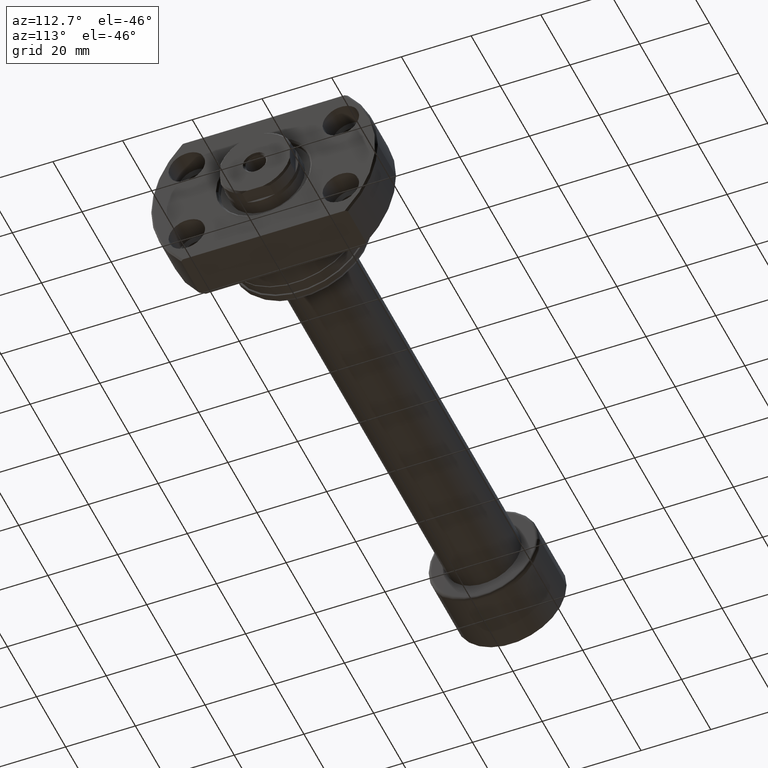
[diagram: clean part render]
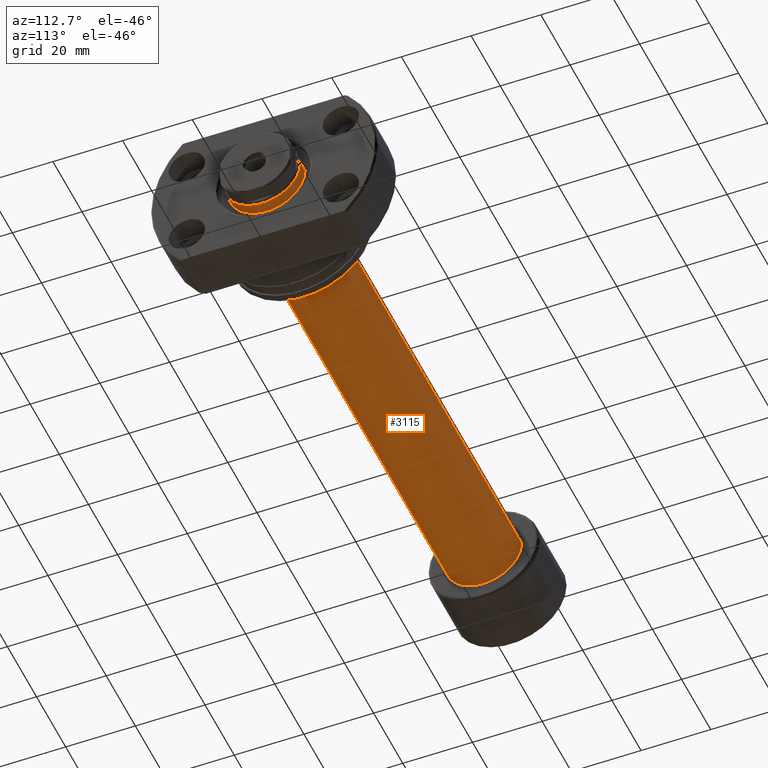
[diagram: same view with one face highlighted and labeled with its STEP entity id]
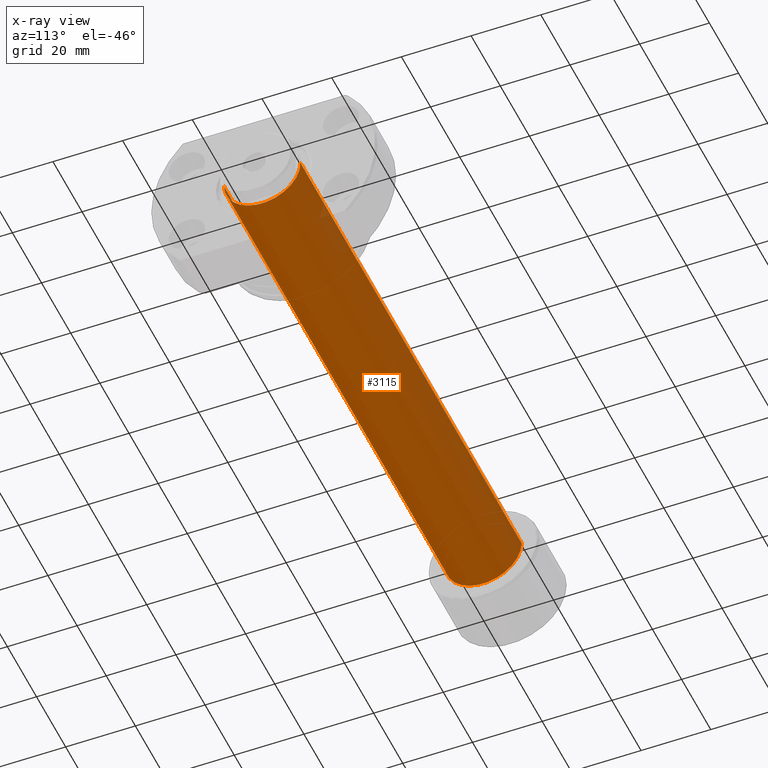
[diagram: x-ray of the same camera — body ghosted, the highlighted face saturated]
A machine part, auxiliary view. The second image highlights one B-rep face of the part: STEP entity #3115.
The next image is the same camera in x-ray: the body ghosted, the highlighted face saturated — about 2% of this face is hidden behind the body in this view.
In plain terms, the highlighted cylindrical surface (partial cylindrical patch) has radius 11 mm, axis along (-1, -0, -0).
Its self-contained STEP definition (entity closure, byte-faithful):
#117 = CARTESIAN_POINT ( 'NONE',  ( 172.0667575123237611, 11.00000000000019718, 1.347111479062112662E-15 ) ) ;
#119 = LINE ( 'NONE', #714, #216 ) ;
#172 = VERTEX_POINT ( 'NONE', #2529 ) ;
#216 = VECTOR ( 'NONE', #624, 1000.000000000000000 ) ;
#245 = CYLINDRICAL_SURFACE ( 'NONE', #273, 11.00000000000009592 ) ;
#273 = AXIS2_PLACEMENT_3D ( 'NONE', #1730, #1230, #2215 ) ;
#286 = VERTEX_POINT ( 'NONE', #117 ) ;
#345 = CARTESIAN_POINT ( 'NONE',  ( 172.0667575123237611, -11.00000000000019362, 0.000000000000000000 ) ) ;
#459 = CARTESIAN_POINT ( 'NONE',  ( -1.176496554275982688E-16, 11.00000000000009592, 1.347111479062100435E-15 ) ) ;
#554 = ORIENTED_EDGE ( 'NONE', *, *, #1022, .F. ) ;
#624 = DIRECTION ( 'NONE',  ( -1.000000000000000000, -1.069542322069065801E-17, -0.000000000000000000 ) ) ;
#713 = CARTESIAN_POINT ( 'NONE',  ( 20.40000000000000924, 2.181866337020895103E-16, 0.000000000000000000 ) ) ;
#714 = CARTESIAN_POINT ( 'NONE',  ( 1.176496554275982688E-16, -11.00000000000009592, 0.000000000000000000 ) ) ;
#910 = EDGE_LOOP ( 'NONE', ( #554, #2852, #2410, #2831 ) ) ;
#970 = DIRECTION ( 'NONE',  ( 0.000000000000000000, -1.000000000000000000, 0.000000000000000000 ) ) ;
#984 = DIRECTION ( 'NONE',  ( 0.000000000000000000, -1.000000000000000000, 0.000000000000000000 ) ) ;
#1022 = EDGE_CURVE ( 'NONE', #286, #1698, #2868, .T. ) ;
#1089 = CIRCLE ( 'NONE', #1594, 11.00000000000000000 ) ;
#1230 = DIRECTION ( 'NONE',  ( -1.000000000000000000, -1.069542322069065801E-17, -0.000000000000000000 ) ) ;
#1532 = EDGE_CURVE ( 'NONE', #1698, #172, #1089, .T. ) ;
#1542 = CARTESIAN_POINT ( 'NONE',  ( 20.40000000000000924, 11.00000000000000000, 1.347111479062094321E-15 ) ) ;
#1594 = AXIS2_PLACEMENT_3D ( 'NONE', #713, #2492, #970 ) ;
#1679 = VERTEX_POINT ( 'NONE', #345 ) ;
#1698 = VERTEX_POINT ( 'NONE', #1542 ) ;
#1730 = CARTESIAN_POINT ( 'NONE',  ( 0.000000000000000000, 0.000000000000000000, 0.000000000000000000 ) ) ;
#1903 = DIRECTION ( 'NONE',  ( -1.000000000000000000, -1.069542322069065801E-17, -0.000000000000000000 ) ) ;
#1964 = CARTESIAN_POINT ( 'NONE',  ( 172.0667575123237611, 1.840326793806256485E-15, 0.000000000000000000 ) ) ;
#2066 = EDGE_CURVE ( 'NONE', #286, #1679, #3219, .T. ) ;
#2110 = VECTOR ( 'NONE', #1903, 1000.000000000000000 ) ;
#2215 = DIRECTION ( 'NONE',  ( 1.069542322069065801E-17, -1.000000000000000000, 0.000000000000000000 ) ) ;
#2249 = FACE_OUTER_BOUND ( 'NONE', #910, .T. ) ;
#2330 = AXIS2_PLACEMENT_3D ( 'NONE', #1964, #3210, #984 ) ;
#2410 = ORIENTED_EDGE ( 'NONE', *, *, #2886, .T. ) ;
#2492 = DIRECTION ( 'NONE',  ( -1.000000000000000000, -1.069542322069065801E-17, -0.000000000000000000 ) ) ;
#2529 = CARTESIAN_POINT ( 'NONE',  ( 20.40000000000000924, -11.00000000000000000, 0.000000000000000000 ) ) ;
#2831 = ORIENTED_EDGE ( 'NONE', *, *, #1532, .F. ) ;
#2852 = ORIENTED_EDGE ( 'NONE', *, *, #2066, .T. ) ;
#2868 = LINE ( 'NONE', #459, #2110 ) ;
#2886 = EDGE_CURVE ( 'NONE', #1679, #172, #119, .T. ) ;
#3115 = ADVANCED_FACE ( 'NONE', ( #2249 ), #245, .T. ) ;
#3210 = DIRECTION ( 'NONE',  ( -1.000000000000000000, -1.069542322069065801E-17, -0.000000000000000000 ) ) ;
#3219 = CIRCLE ( 'NONE', #2330, 11.00000000000019540 ) ;